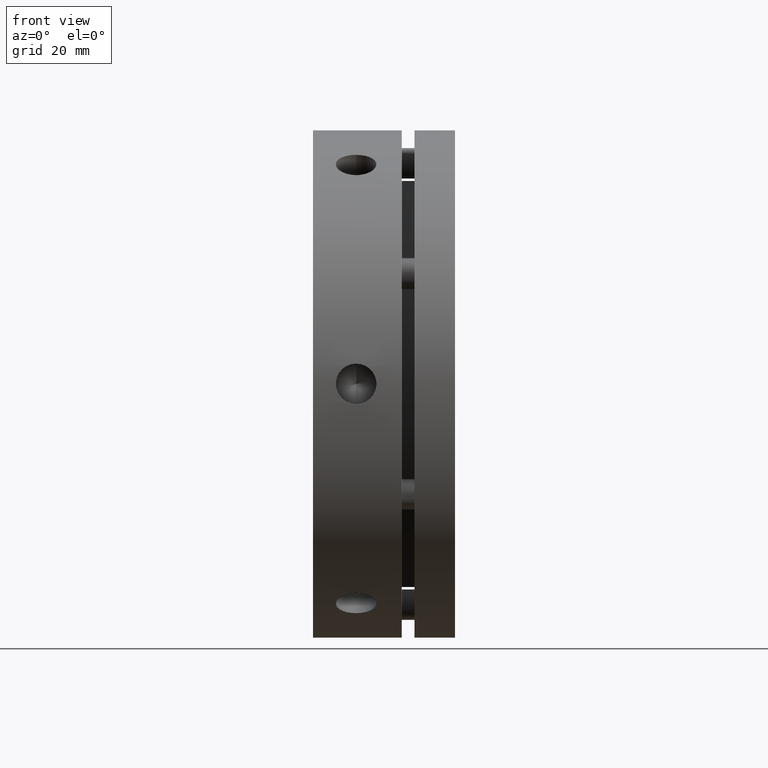
[diagram: clean part render]
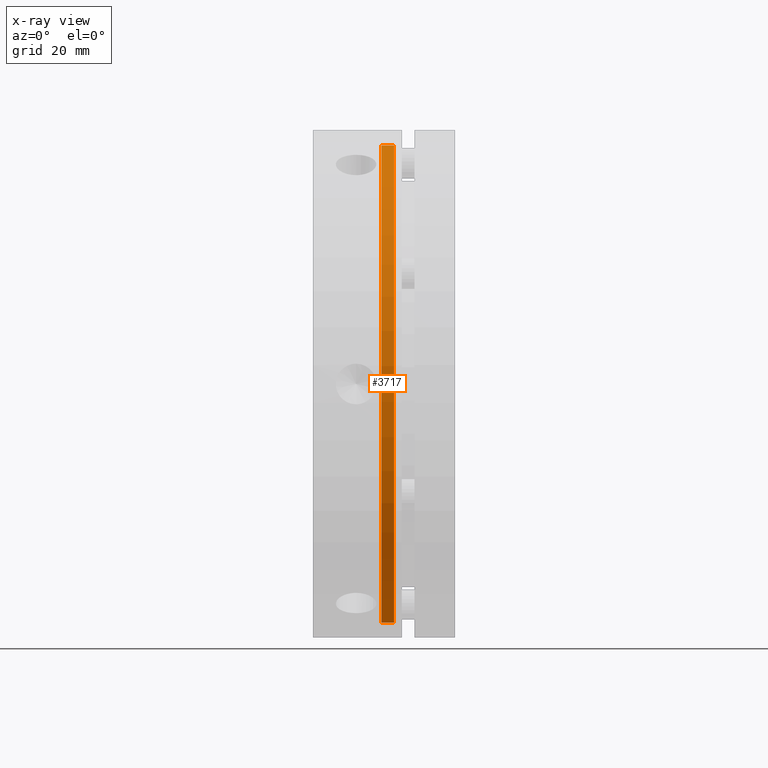
[diagram: x-ray — body ghosted, one internal face saturated and labeled with its STEP entity id]
A machine part, front view, then the same camera in x-ray: the body is ghosted and one INTERNAL B-rep face — a face not visible from any outside direction — is saturated and labeled: STEP entity #3717.
In plain terms, the highlighted cylindrical surface (partial cylindrical patch) has radius 47 mm, axis along (-1, 0, 0).
Its self-contained STEP definition (entity closure, byte-faithful):
#1324 = DIRECTION ( 'NONE',  ( 0.0000000000000000000, 0.0000000000000000000, 1.000000000000000000 ) ) ;
#1326 = DIRECTION ( 'NONE',  ( -1.000000000000000000, 0.0000000000000000000, 0.0000000000000000000 ) ) ;
#1328 = CARTESIAN_POINT ( 'NONE',  ( 14.75000000000000200, 0.0000000000000000000, 0.0000000000000000000 ) ) ;
#1528 = DIRECTION ( 'NONE',  ( -1.000000000000000000, 0.0000000000000000000, 0.0000000000000000000 ) ) ;
#1532 = DIRECTION ( 'NONE',  ( -1.000000000000000000, 0.0000000000000000000, 0.0000000000000000000 ) ) ;
#1533 = CARTESIAN_POINT ( 'NONE',  ( 14.75000000000000200, 0.0000000000000000000, 47.00000000000000000 ) ) ;
#1534 = CARTESIAN_POINT ( 'NONE',  ( 14.75000000000000200, 5.755839955992560600E-015, -47.00000000000000000 ) ) ;
#1535 = CARTESIAN_POINT ( 'NONE',  ( 15.99999999999999600, 0.0000000000000000000, 0.0000000000000000000 ) ) ;
#1536 = DIRECTION ( 'NONE',  ( 1.000000000000000000, -0.0000000000000000000, -0.0000000000000000000 ) ) ;
#1537 = DIRECTION ( 'NONE',  ( 0.0000000000000000000, 0.0000000000000000000, 1.000000000000000000 ) ) ;
#1541 = CARTESIAN_POINT ( 'NONE',  ( 13.50000000000000400, 0.0000000000000000000, 0.0000000000000000000 ) ) ;
#1542 = DIRECTION ( 'NONE',  ( -1.000000000000000000, 0.0000000000000000000, 0.0000000000000000000 ) ) ;
#1543 = DIRECTION ( 'NONE',  ( 0.0000000000000000000, 0.0000000000000000000, 1.000000000000000000 ) ) ;
#1798 = FACE_OUTER_BOUND ( 'NONE', #3016, .T. ) ;
#1807 = CYLINDRICAL_SURFACE ( 'NONE', #3309, 47.00000000000000000 ) ;
#1912 = LINE ( 'NONE', #1534, #1922 ) ;
#1918 = CIRCLE ( 'NONE', #3367, 47.00000000000000000 ) ;
#1922 = VECTOR ( 'NONE', #1528, 1000.000000000000000 ) ;
#1923 = CIRCLE ( 'NONE', #3368, 47.00000000000000000 ) ;
#1925 = LINE ( 'NONE', #1533, #1927 ) ;
#1927 = VECTOR ( 'NONE', #1532, 1000.000000000000000 ) ;
#2381 = ORIENTED_EDGE ( 'NONE', *, *, #4737, .T. ) ;
#2410 = ORIENTED_EDGE ( 'NONE', *, *, #4739, .T. ) ;
#2423 = ORIENTED_EDGE ( 'NONE', *, *, #4740, .F. ) ;
#2436 = ORIENTED_EDGE ( 'NONE', *, *, #4736, .T. ) ;
#2875 = VERTEX_POINT ( 'NONE', #4016 ) ;
#2876 = VERTEX_POINT ( 'NONE', #4017 ) ;
#2881 = VERTEX_POINT ( 'NONE', #4022 ) ;
#2882 = VERTEX_POINT ( 'NONE', #4023 ) ;
#3016 = EDGE_LOOP ( 'NONE', ( #2436, #2381, #2410, #2423 ) ) ;
#3309 = AXIS2_PLACEMENT_3D ( 'NONE', #1328, #1326, #1324 ) ;
#3367 = AXIS2_PLACEMENT_3D ( 'NONE', #1535, #1536, #1537 ) ;
#3368 = AXIS2_PLACEMENT_3D ( 'NONE', #1541, #1542, #1543 ) ;
#3717 = ADVANCED_FACE ( 'NONE', ( #1798 ), #1807, .F. ) ;
#4016 = CARTESIAN_POINT ( 'NONE',  ( 15.99999999999999600, 0.0000000000000000000, 47.00000000000000000 ) ) ;
#4017 = CARTESIAN_POINT ( 'NONE',  ( 15.99999999999999600, 5.755839955992560600E-015, -47.00000000000000000 ) ) ;
#4022 = CARTESIAN_POINT ( 'NONE',  ( 13.50000000000000400, 5.755839955992560600E-015, -47.00000000000000000 ) ) ;
#4023 = CARTESIAN_POINT ( 'NONE',  ( 13.50000000000000400, 0.0000000000000000000, 47.00000000000000000 ) ) ;
#4736 = EDGE_CURVE ( 'NONE', #2875, #2876, #1918, .T. ) ;
#4737 = EDGE_CURVE ( 'NONE', #2876, #2881, #1912, .T. ) ;
#4739 = EDGE_CURVE ( 'NONE', #2881, #2882, #1923, .T. ) ;
#4740 = EDGE_CURVE ( 'NONE', #2875, #2882, #1925, .T. ) ;